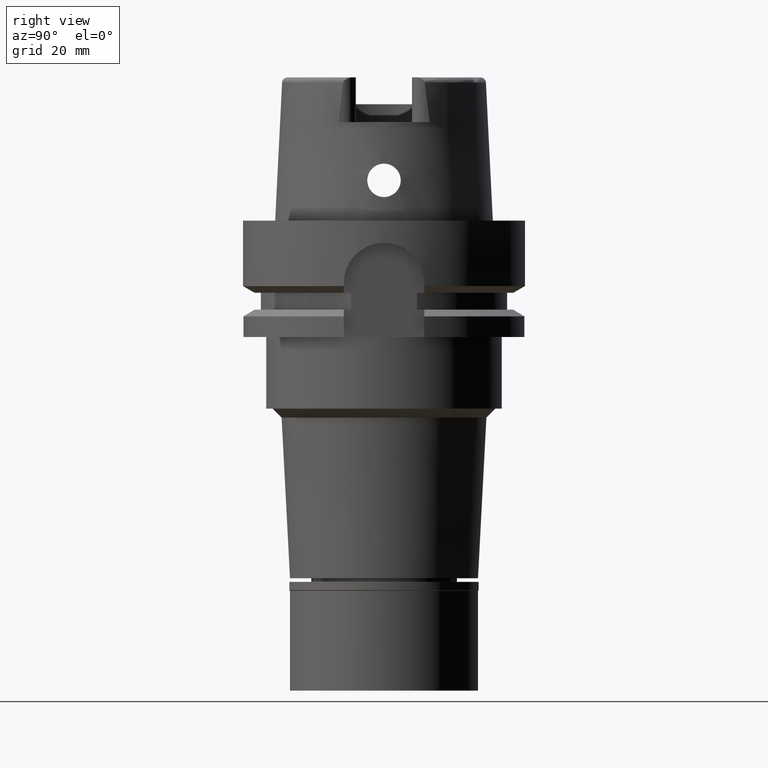
[diagram: clean part render]
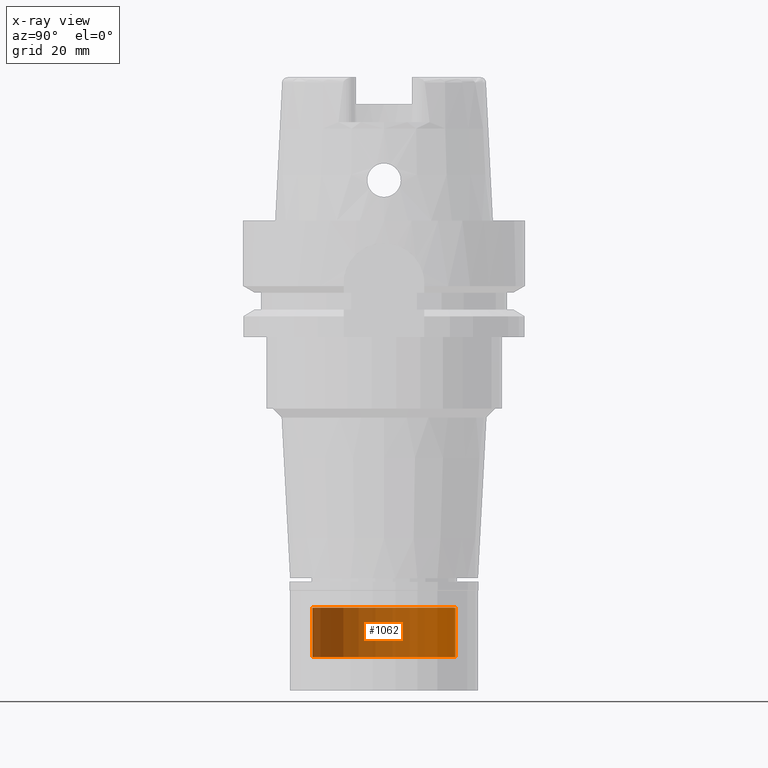
[diagram: x-ray — body ghosted, one internal face saturated and labeled with its STEP entity id]
A machine part, right view, then the same camera in x-ray: the body is ghosted and one INTERNAL B-rep face — a face not visible from any outside direction — is saturated and labeled: STEP entity #1062.
In plain terms, the highlighted cylindrical surface (partial cylindrical patch) has radius 16 mm, axis along (0, 0, 1).
Its self-contained STEP definition (entity closure, byte-faithful):
#127 = VERTEX_POINT ( 'NONE', #3593 ) ;
#401 = DIRECTION ( 'NONE',  ( 0.0000000000000000000, 1.000000000000000000, 0.0000000000000000000 ) ) ;
#537 = AXIS2_PLACEMENT_3D ( 'NONE', #5047, #3668, #4867 ) ;
#544 = AXIS2_PLACEMENT_3D ( 'NONE', #3340, #1595, #2909 ) ;
#888 = CIRCLE ( 'NONE', #537, 16.00000000000000000 ) ;
#1006 = EDGE_CURVE ( 'NONE', #127, #1017, #1700, .T. ) ;
#1017 = VERTEX_POINT ( 'NONE', #3333 ) ;
#1062 = ADVANCED_FACE ( 'NONE', ( #2097 ), #4601, .T. ) ;
#1463 = ORIENTED_EDGE ( 'NONE', *, *, #3505, .T. ) ;
#1595 = DIRECTION ( 'NONE',  ( 0.0000000000000000000, 0.0000000000000000000, 1.000000000000000000 ) ) ;
#1610 = CIRCLE ( 'NONE', #544, 16.00000000000000000 ) ;
#1669 = DIRECTION ( 'NONE',  ( 0.0000000000000000000, 0.0000000000000000000, 1.000000000000000000 ) ) ;
#1700 = LINE ( 'NONE', #4236, #4403 ) ;
#1864 = ORIENTED_EDGE ( 'NONE', *, *, #1006, .F. ) ;
#2097 = FACE_OUTER_BOUND ( 'NONE', #5106, .T. ) ;
#2334 = VECTOR ( 'NONE', #5296, 1000.000000000000000 ) ;
#2411 = LINE ( 'NONE', #2875, #2334 ) ;
#2495 = CARTESIAN_POINT ( 'NONE',  ( 0.0000000000000000000, 16.00000000000000000, -86.50000000000000000 ) ) ;
#2682 = ORIENTED_EDGE ( 'NONE', *, *, #4443, .T. ) ;
#2875 = CARTESIAN_POINT ( 'NONE',  ( 0.0000000000000000000, 16.00000000000000000, -86.50000000000000000 ) ) ;
#2909 = DIRECTION ( 'NONE',  ( 0.0000000000000000000, 1.000000000000000000, 0.0000000000000000000 ) ) ;
#2964 = DIRECTION ( 'NONE',  ( 0.0000000000000000000, 0.0000000000000000000, -1.000000000000000000 ) ) ;
#3172 = CARTESIAN_POINT ( 'NONE',  ( 0.0000000000000000000, 16.00000000000000000, -97.50000000000000000 ) ) ;
#3226 = EDGE_CURVE ( 'NONE', #127, #4557, #888, .T. ) ;
#3333 = CARTESIAN_POINT ( 'NONE',  ( 0.0000000000000000000, -16.00000000000000000, -97.50000000000000000 ) ) ;
#3340 = CARTESIAN_POINT ( 'NONE',  ( 0.0000000000000000000, 0.0000000000000000000, -97.50000000000000000 ) ) ;
#3505 = EDGE_CURVE ( 'NONE', #4701, #1017, #1610, .T. ) ;
#3593 = CARTESIAN_POINT ( 'NONE',  ( 0.0000000000000000000, -16.00000000000000000, -86.50000000000000000 ) ) ;
#3668 = DIRECTION ( 'NONE',  ( 0.0000000000000000000, 0.0000000000000000000, -1.000000000000000000 ) ) ;
#4124 = AXIS2_PLACEMENT_3D ( 'NONE', #5414, #1669, #401 ) ;
#4236 = CARTESIAN_POINT ( 'NONE',  ( 0.0000000000000000000, -16.00000000000000000, -86.50000000000000000 ) ) ;
#4403 = VECTOR ( 'NONE', #2964, 1000.000000000000000 ) ;
#4443 = EDGE_CURVE ( 'NONE', #4557, #4701, #2411, .T. ) ;
#4557 = VERTEX_POINT ( 'NONE', #2495 ) ;
#4601 = CYLINDRICAL_SURFACE ( 'NONE', #4124, 16.00000000000000000 ) ;
#4701 = VERTEX_POINT ( 'NONE', #3172 ) ;
#4867 = DIRECTION ( 'NONE',  ( 0.0000000000000000000, -1.000000000000000000, 0.0000000000000000000 ) ) ;
#5047 = CARTESIAN_POINT ( 'NONE',  ( 0.0000000000000000000, 0.0000000000000000000, -86.50000000000000000 ) ) ;
#5066 = ORIENTED_EDGE ( 'NONE', *, *, #3226, .T. ) ;
#5106 = EDGE_LOOP ( 'NONE', ( #1463, #1864, #5066, #2682 ) ) ;
#5296 = DIRECTION ( 'NONE',  ( 0.0000000000000000000, 0.0000000000000000000, -1.000000000000000000 ) ) ;
#5414 = CARTESIAN_POINT ( 'NONE',  ( 0.0000000000000000000, 0.0000000000000000000, 0.0000000000000000000 ) ) ;